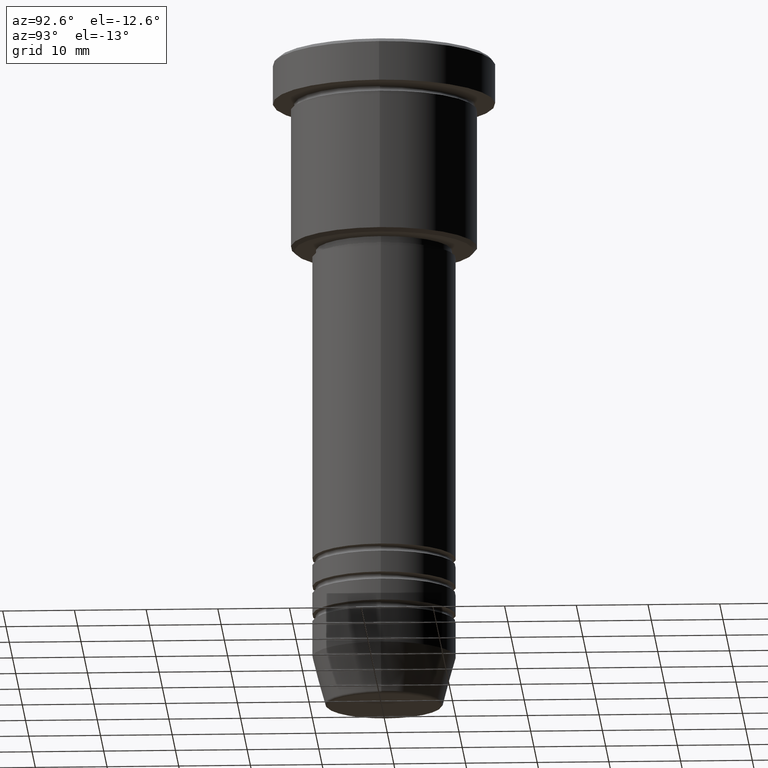
[diagram: clean part render]
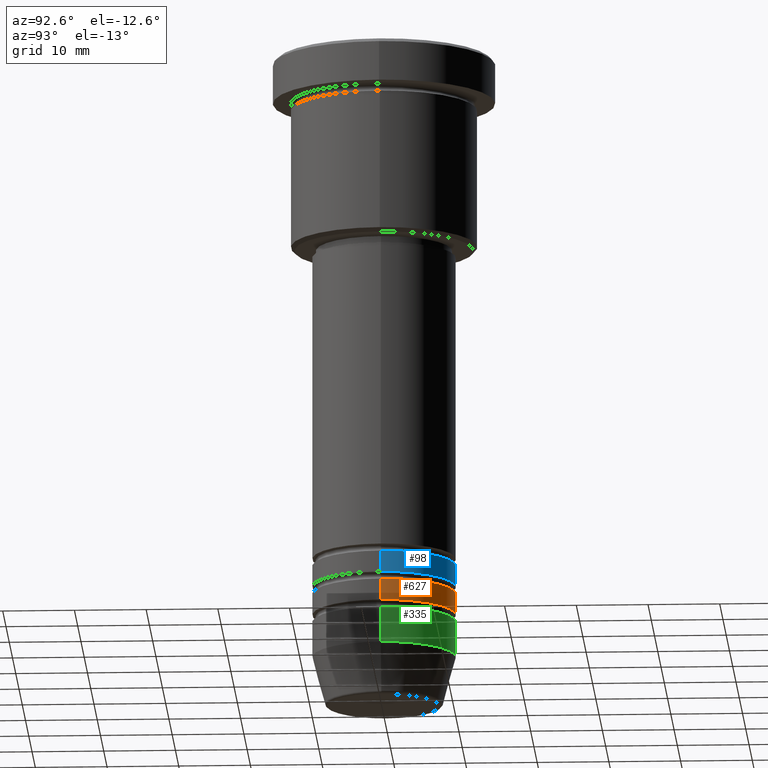
[diagram: same view with three faces highlighted in distinct colors, each labeled with its STEP entity id]
A machine part, auxiliary view with three faces highlighted in distinct colors.
Their STEP definitions:

[orange] entity #627 — the highlighted cylindrical surface (partial cylindrical patch) has radius 10 mm, axis along (-0, -0, 1).
#9 = DIRECTION ( 'NONE',  ( 1.000000000000000000, 0.000000000000000000, 0.000000000000000000 ) ) ;
#47 = EDGE_CURVE ( 'NONE', #326, #628, #546, .T. ) ;
#64 = ORIENTED_EDGE ( 'NONE', *, *, #1073, .F. ) ;
#77 = CARTESIAN_POINT ( 'NONE',  ( 0.000000000000000000, 0.000000000000000000, -78.99999999999988631 ) ) ;
#97 = DIRECTION ( 'NONE',  ( -0.000000000000000000, -0.000000000000000000, 1.000000000000000000 ) ) ;
#99 = ORIENTED_EDGE ( 'NONE', *, *, #451, .T. ) ;
#101 = CYLINDRICAL_SURFACE ( 'NONE', #170, 10.00000000000000178 ) ;
#119 = CARTESIAN_POINT ( 'NONE',  ( 0.000000000000000000, 0.000000000000000000, 0.000000000000000000 ) ) ;
#159 = DIRECTION ( 'NONE',  ( 1.000000000000000000, 0.000000000000000000, 0.000000000000000000 ) ) ;
#170 = AXIS2_PLACEMENT_3D ( 'NONE', #119, #461, #929 ) ;
#206 = FACE_OUTER_BOUND ( 'NONE', #1084, .T. ) ;
#222 = CIRCLE ( 'NONE', #1177, 10.00000000000000000 ) ;
#253 = EDGE_CURVE ( 'NONE', #1115, #628, #222, .T. ) ;
#258 = CIRCLE ( 'NONE', #1023, 10.00000000000000178 ) ;
#293 = LINE ( 'NONE', #1112, #321 ) ;
#321 = VECTOR ( 'NONE', #1022, 1000.000000000000000 ) ;
#326 = VERTEX_POINT ( 'NONE', #785 ) ;
#327 = DIRECTION ( 'NONE',  ( -0.000000000000000000, -0.000000000000000000, 1.000000000000000000 ) ) ;
#451 = EDGE_CURVE ( 'NONE', #786, #326, #258, .T. ) ;
#461 = DIRECTION ( 'NONE',  ( -0.000000000000000000, -0.000000000000000000, 1.000000000000000000 ) ) ;
#469 = CARTESIAN_POINT ( 'NONE',  ( 0.000000000000000000, 0.000000000000000000, -75.99999999999990052 ) ) ;
#501 = CARTESIAN_POINT ( 'NONE',  ( 10.00000000000000178, 0.000000000000000000, -78.99999999999988631 ) ) ;
#546 = LINE ( 'NONE', #919, #793 ) ;
#598 = ORIENTED_EDGE ( 'NONE', *, *, #47, .T. ) ;
#627 = ADVANCED_FACE ( 'NONE', ( #206 ), #101, .T. ) ;
#628 = VERTEX_POINT ( 'NONE', #661 ) ;
#661 = CARTESIAN_POINT ( 'NONE',  ( -10.00000000000000000, 1.224646799147353256E-15, -75.99999999999990052 ) ) ;
#785 = CARTESIAN_POINT ( 'NONE',  ( -10.00000000000000178, 1.224646799147353454E-15, -78.99999999999988631 ) ) ;
#786 = VERTEX_POINT ( 'NONE', #501 ) ;
#793 = VECTOR ( 'NONE', #97, 1000.000000000000000 ) ;
#840 = CARTESIAN_POINT ( 'NONE',  ( 10.00000000000000000, 0.000000000000000000, -75.99999999999990052 ) ) ;
#919 = CARTESIAN_POINT ( 'NONE',  ( -10.00000000000000178, 1.224646799147353454E-15, 0.000000000000000000 ) ) ;
#929 = DIRECTION ( 'NONE',  ( 1.000000000000000000, 0.000000000000000000, 0.000000000000000000 ) ) ;
#1022 = DIRECTION ( 'NONE',  ( -0.000000000000000000, -0.000000000000000000, 1.000000000000000000 ) ) ;
#1023 = AXIS2_PLACEMENT_3D ( 'NONE', #77, #1179, #9 ) ;
#1064 = ORIENTED_EDGE ( 'NONE', *, *, #253, .F. ) ;
#1073 = EDGE_CURVE ( 'NONE', #786, #1115, #293, .T. ) ;
#1084 = EDGE_LOOP ( 'NONE', ( #99, #598, #1064, #64 ) ) ;
#1112 = CARTESIAN_POINT ( 'NONE',  ( 10.00000000000000178, 0.000000000000000000, 0.000000000000000000 ) ) ;
#1115 = VERTEX_POINT ( 'NONE', #840 ) ;
#1177 = AXIS2_PLACEMENT_3D ( 'NONE', #469, #327, #159 ) ;
#1179 = DIRECTION ( 'NONE',  ( -0.000000000000000000, -0.000000000000000000, 1.000000000000000000 ) ) ;

[blue] entity #98 — the highlighted cylindrical surface (partial cylindrical patch) has radius 10 mm, axis along (-0, -0, 1).
#5 = VERTEX_POINT ( 'NONE', #646 ) ;
#68 = CARTESIAN_POINT ( 'NONE',  ( 10.00000000000000178, 0.000000000000000000, -74.99999999999991473 ) ) ;
#98 = ADVANCED_FACE ( 'NONE', ( #651 ), #134, .T. ) ;
#134 = CYLINDRICAL_SURFACE ( 'NONE', #615, 10.00000000000000178 ) ;
#151 = EDGE_CURVE ( 'NONE', #312, #776, #1026, .T. ) ;
#224 = CARTESIAN_POINT ( 'NONE',  ( 10.00000000000000178, 0.000000000000000000, 0.000000000000000000 ) ) ;
#270 = DIRECTION ( 'NONE',  ( -0.000000000000000000, -0.000000000000000000, 1.000000000000000000 ) ) ;
#292 = VERTEX_POINT ( 'NONE', #68 ) ;
#307 = DIRECTION ( 'NONE',  ( 1.000000000000000000, 0.000000000000000000, 0.000000000000000000 ) ) ;
#310 = LINE ( 'NONE', #224, #504 ) ;
#312 = VERTEX_POINT ( 'NONE', #597 ) ;
#362 = DIRECTION ( 'NONE',  ( 1.000000000000000000, 0.000000000000000000, 0.000000000000000000 ) ) ;
#376 = CIRCLE ( 'NONE', #1007, 10.00000000000000178 ) ;
#414 = AXIS2_PLACEMENT_3D ( 'NONE', #733, #935, #477 ) ;
#422 = ORIENTED_EDGE ( 'NONE', *, *, #574, .F. ) ;
#475 = DIRECTION ( 'NONE',  ( -0.000000000000000000, -0.000000000000000000, 1.000000000000000000 ) ) ;
#476 = EDGE_LOOP ( 'NONE', ( #792, #1076, #738, #422 ) ) ;
#477 = DIRECTION ( 'NONE',  ( 1.000000000000000000, 0.000000000000000000, 0.000000000000000000 ) ) ;
#492 = CARTESIAN_POINT ( 'NONE',  ( -10.00000000000000178, 1.224646799147353454E-15, 0.000000000000000000 ) ) ;
#504 = VECTOR ( 'NONE', #1131, 1000.000000000000000 ) ;
#574 = EDGE_CURVE ( 'NONE', #292, #5, #310, .T. ) ;
#597 = CARTESIAN_POINT ( 'NONE',  ( -10.00000000000000178, 1.224646799147353454E-15, -74.99999999999991473 ) ) ;
#615 = AXIS2_PLACEMENT_3D ( 'NONE', #673, #838, #307 ) ;
#646 = CARTESIAN_POINT ( 'NONE',  ( 10.00000000000000000, 0.000000000000000000, -71.99999999999990052 ) ) ;
#651 = FACE_OUTER_BOUND ( 'NONE', #476, .T. ) ;
#673 = CARTESIAN_POINT ( 'NONE',  ( 0.000000000000000000, 0.000000000000000000, 0.000000000000000000 ) ) ;
#716 = CARTESIAN_POINT ( 'NONE',  ( 0.000000000000000000, 0.000000000000000000, -74.99999999999991473 ) ) ;
#733 = CARTESIAN_POINT ( 'NONE',  ( 0.000000000000000000, 0.000000000000000000, -71.99999999999990052 ) ) ;
#738 = ORIENTED_EDGE ( 'NONE', *, *, #1085, .F. ) ;
#776 = VERTEX_POINT ( 'NONE', #884 ) ;
#792 = ORIENTED_EDGE ( 'NONE', *, *, #961, .T. ) ;
#838 = DIRECTION ( 'NONE',  ( -0.000000000000000000, -0.000000000000000000, 1.000000000000000000 ) ) ;
#884 = CARTESIAN_POINT ( 'NONE',  ( -10.00000000000000000, 1.224646799147353256E-15, -71.99999999999990052 ) ) ;
#935 = DIRECTION ( 'NONE',  ( -0.000000000000000000, -0.000000000000000000, 1.000000000000000000 ) ) ;
#961 = EDGE_CURVE ( 'NONE', #292, #312, #376, .T. ) ;
#989 = CIRCLE ( 'NONE', #414, 10.00000000000000000 ) ;
#1007 = AXIS2_PLACEMENT_3D ( 'NONE', #716, #270, #362 ) ;
#1026 = LINE ( 'NONE', #492, #1081 ) ;
#1076 = ORIENTED_EDGE ( 'NONE', *, *, #151, .T. ) ;
#1081 = VECTOR ( 'NONE', #475, 1000.000000000000000 ) ;
#1085 = EDGE_CURVE ( 'NONE', #5, #776, #989, .T. ) ;
#1131 = DIRECTION ( 'NONE',  ( -0.000000000000000000, -0.000000000000000000, 1.000000000000000000 ) ) ;

[green] entity #335 — the highlighted cylindrical surface (partial cylindrical patch) has radius 10 mm, axis along (-0, -0, 1).
#15 = CARTESIAN_POINT ( 'NONE',  ( 0.000000000000000000, 0.000000000000000000, -85.00000000000000000 ) ) ;
#24 = CARTESIAN_POINT ( 'NONE',  ( 10.00000000000000000, 0.000000000000000000, 0.000000000000000000 ) ) ;
#30 = DIRECTION ( 'NONE',  ( -0.000000000000000000, -0.000000000000000000, 1.000000000000000000 ) ) ;
#50 = DIRECTION ( 'NONE',  ( 1.000000000000000000, 0.000000000000000000, 0.000000000000000000 ) ) ;
#100 = CARTESIAN_POINT ( 'NONE',  ( -10.00000000000000000, 1.224646799147353256E-15, 0.000000000000000000 ) ) ;
#124 = DIRECTION ( 'NONE',  ( -0.000000000000000000, -0.000000000000000000, 1.000000000000000000 ) ) ;
#147 = VERTEX_POINT ( 'NONE', #1119 ) ;
#153 = AXIS2_PLACEMENT_3D ( 'NONE', #179, #169, #721 ) ;
#154 = CYLINDRICAL_SURFACE ( 'NONE', #829, 10.00000000000000000 ) ;
#169 = DIRECTION ( 'NONE',  ( -0.000000000000000000, -0.000000000000000000, 1.000000000000000000 ) ) ;
#179 = CARTESIAN_POINT ( 'NONE',  ( 0.000000000000000000, 0.000000000000000000, -80.00000000000001421 ) ) ;
#243 = ORIENTED_EDGE ( 'NONE', *, *, #897, .F. ) ;
#304 = VECTOR ( 'NONE', #550, 1000.000000000000000 ) ;
#330 = EDGE_LOOP ( 'NONE', ( #682, #750, #243, #510 ) ) ;
#335 = ADVANCED_FACE ( 'NONE', ( #417 ), #154, .T. ) ;
#343 = CARTESIAN_POINT ( 'NONE',  ( 10.00000000000000000, 0.000000000000000000, -80.00000000000001421 ) ) ;
#356 = AXIS2_PLACEMENT_3D ( 'NONE', #15, #124, #395 ) ;
#395 = DIRECTION ( 'NONE',  ( 1.000000000000000000, 0.000000000000000000, 0.000000000000000000 ) ) ;
#417 = FACE_OUTER_BOUND ( 'NONE', #330, .T. ) ;
#510 = ORIENTED_EDGE ( 'NONE', *, *, #1121, .F. ) ;
#550 = DIRECTION ( 'NONE',  ( -0.000000000000000000, -0.000000000000000000, 1.000000000000000000 ) ) ;
#568 = LINE ( 'NONE', #100, #755 ) ;
#587 = CARTESIAN_POINT ( 'NONE',  ( 0.000000000000000000, 0.000000000000000000, 0.000000000000000000 ) ) ;
#592 = DIRECTION ( 'NONE',  ( -0.000000000000000000, -0.000000000000000000, 1.000000000000000000 ) ) ;
#653 = CARTESIAN_POINT ( 'NONE',  ( -10.00000000000000000, 1.224646799147353256E-15, -80.00000000000001421 ) ) ;
#665 = EDGE_CURVE ( 'NONE', #147, #1120, #874, .T. ) ;
#682 = ORIENTED_EDGE ( 'NONE', *, *, #665, .T. ) ;
#721 = DIRECTION ( 'NONE',  ( 1.000000000000000000, 0.000000000000000000, 0.000000000000000000 ) ) ;
#744 = LINE ( 'NONE', #24, #304 ) ;
#750 = ORIENTED_EDGE ( 'NONE', *, *, #1137, .T. ) ;
#755 = VECTOR ( 'NONE', #30, 1000.000000000000000 ) ;
#829 = AXIS2_PLACEMENT_3D ( 'NONE', #587, #592, #50 ) ;
#868 = VERTEX_POINT ( 'NONE', #343 ) ;
#874 = CIRCLE ( 'NONE', #356, 10.00000000000000000 ) ;
#897 = EDGE_CURVE ( 'NONE', #868, #979, #1087, .T. ) ;
#979 = VERTEX_POINT ( 'NONE', #653 ) ;
#1036 = CARTESIAN_POINT ( 'NONE',  ( -10.00000000000000000, 1.224646799147353256E-15, -85.00000000000000000 ) ) ;
#1087 = CIRCLE ( 'NONE', #153, 10.00000000000000000 ) ;
#1119 = CARTESIAN_POINT ( 'NONE',  ( 10.00000000000000000, 0.000000000000000000, -85.00000000000000000 ) ) ;
#1120 = VERTEX_POINT ( 'NONE', #1036 ) ;
#1121 = EDGE_CURVE ( 'NONE', #147, #868, #744, .T. ) ;
#1137 = EDGE_CURVE ( 'NONE', #1120, #979, #568, .T. ) ;